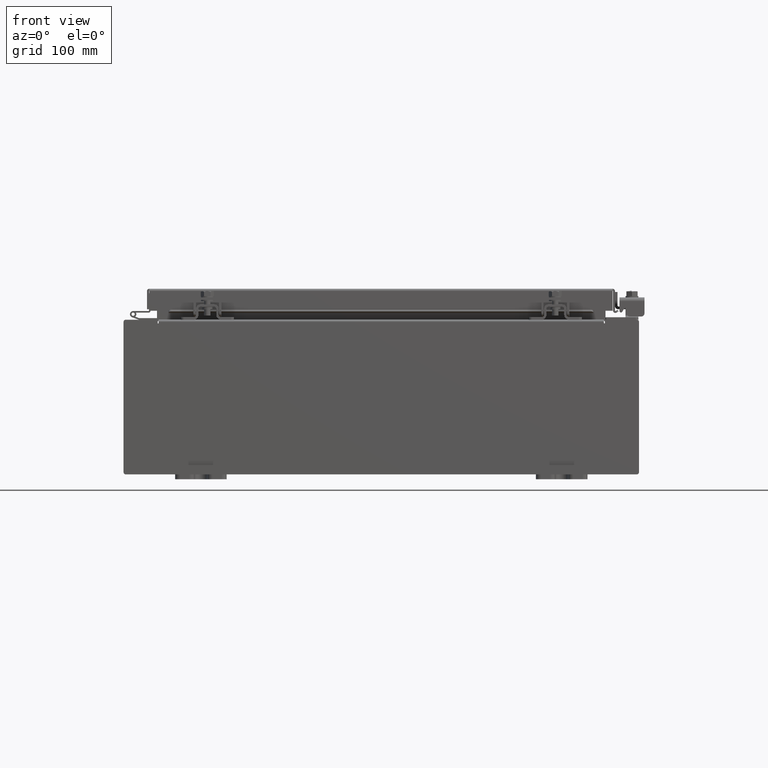
[diagram: clean part render]
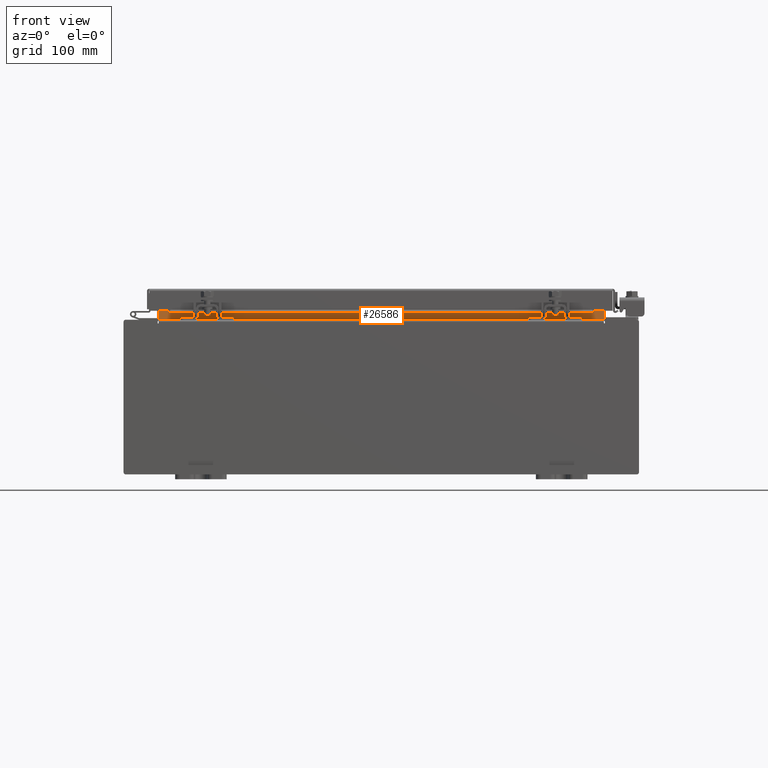
[diagram: same view with one face highlighted and labeled with its STEP entity id]
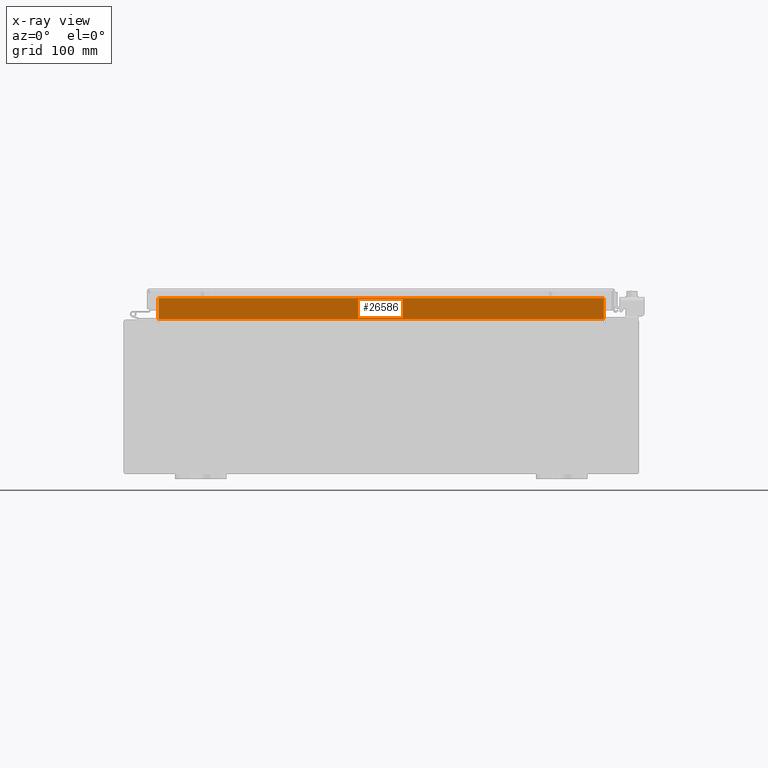
[diagram: x-ray of the same camera — body ghosted, the highlighted face saturated]
A machine part, front view. The second image highlights one B-rep face of the part: STEP entity #26586.
The next image is the same camera in x-ray: the body ghosted, the highlighted face saturated — about 0% of this face is hidden behind the body in this view.
In plain terms, the highlighted planar face has unit normal (0, -1, 0).
Its self-contained STEP definition (entity closure, byte-faithful):
#43 = CARTESIAN_POINT ( 'NONE',  ( 8.637200000000000000, -1.300300000000000000, 3.837600000000005000 ) ) ;
#247 = VERTEX_POINT ( 'NONE', #508 ) ;
#508 = CARTESIAN_POINT ( 'NONE',  ( 8.637200000000000000, -1.300299999999999800, 3.837600000000005000 ) ) ;
#1629 = LINE ( 'NONE', #20004, #7754 ) ;
#1775 = ORIENTED_EDGE ( 'NONE', *, *, #13054, .F. ) ;
#2058 = FACE_OUTER_BOUND ( 'NONE', #11716, .T. ) ;
#2459 = PLANE ( 'NONE',  #11045 ) ;
#3250 = LINE ( 'NONE', #9902, #24036 ) ;
#4212 = VERTEX_POINT ( 'NONE', #11702 ) ;
#4546 = DIRECTION ( 'NONE',  ( 0.0000000000000000000, -0.0000000000000000000, 1.000000000000000000 ) ) ;
#4801 = CARTESIAN_POINT ( 'NONE',  ( 8.637199999999996400, -1.300299999999999800, 3.013000000000004800 ) ) ;
#4821 = VECTOR ( 'NONE', #15841, 39.37007874015748100 ) ;
#5215 = DIRECTION ( 'NONE',  ( -0.0000000000000000000, -0.0000000000000000000, -1.000000000000000000 ) ) ;
#6268 = ORIENTED_EDGE ( 'NONE', *, *, #18446, .F. ) ;
#6373 = ORIENTED_EDGE ( 'NONE', *, *, #19043, .F. ) ;
#6627 = CARTESIAN_POINT ( 'NONE',  ( -8.637200000000000000, -1.300300000000000000, 3.837600000000005000 ) ) ;
#6679 = ORIENTED_EDGE ( 'NONE', *, *, #13320, .F. ) ;
#7585 = VERTEX_POINT ( 'NONE', #4801 ) ;
#7754 = VECTOR ( 'NONE', #21291, 39.37007874015748100 ) ;
#9902 = CARTESIAN_POINT ( 'NONE',  ( -8.637200000000000000, -1.300299999999999800, 3.000000000000005300 ) ) ;
#11045 = AXIS2_PLACEMENT_3D ( 'NONE', #22530, #18449, #4546 ) ;
#11702 = CARTESIAN_POINT ( 'NONE',  ( -8.637200000000000000, -1.300299999999999800, 3.013000000000004800 ) ) ;
#11716 = EDGE_LOOP ( 'NONE', ( #6679, #6268, #6373, #1775 ) ) ;
#13054 = EDGE_CURVE ( 'NONE', #4212, #7585, #1629, .T. ) ;
#13320 = EDGE_CURVE ( 'NONE', #24272, #4212, #3250, .T. ) ;
#15841 = DIRECTION ( 'NONE',  ( -1.000000000000000000, -0.0000000000000000000, -0.0000000000000000000 ) ) ;
#18446 = EDGE_CURVE ( 'NONE', #247, #24272, #22383, .T. ) ;
#18449 = DIRECTION ( 'NONE',  ( 0.0000000000000000000, 1.000000000000000000, 0.0000000000000000000 ) ) ;
#19043 = EDGE_CURVE ( 'NONE', #7585, #247, #23036, .T. ) ;
#19942 = VECTOR ( 'NONE', #22971, 39.37007874015748100 ) ;
#20004 = CARTESIAN_POINT ( 'NONE',  ( -8.637200000000000000, -1.300299999999999800, 3.013000000000005200 ) ) ;
#21291 = DIRECTION ( 'NONE',  ( 1.000000000000000000, 0.0000000000000000000, -6.325772226333218300E-017 ) ) ;
#22383 = LINE ( 'NONE', #43, #4821 ) ;
#22530 = CARTESIAN_POINT ( 'NONE',  ( 0.0000000000000000000, -1.300299999999999800, 0.0000000000000000000 ) ) ;
#22971 = DIRECTION ( 'NONE',  ( -0.0000000000000000000, -0.0000000000000000000, 1.000000000000000000 ) ) ;
#23036 = LINE ( 'NONE', #24969, #19942 ) ;
#24036 = VECTOR ( 'NONE', #5215, 39.37007874015748100 ) ;
#24272 = VERTEX_POINT ( 'NONE', #6627 ) ;
#24969 = CARTESIAN_POINT ( 'NONE',  ( 8.637200000000000000, -1.300299999999999800, 3.925300000000005300 ) ) ;
#26586 = ADVANCED_FACE ( 'NONE', ( #2058 ), #2459, .T. ) ;